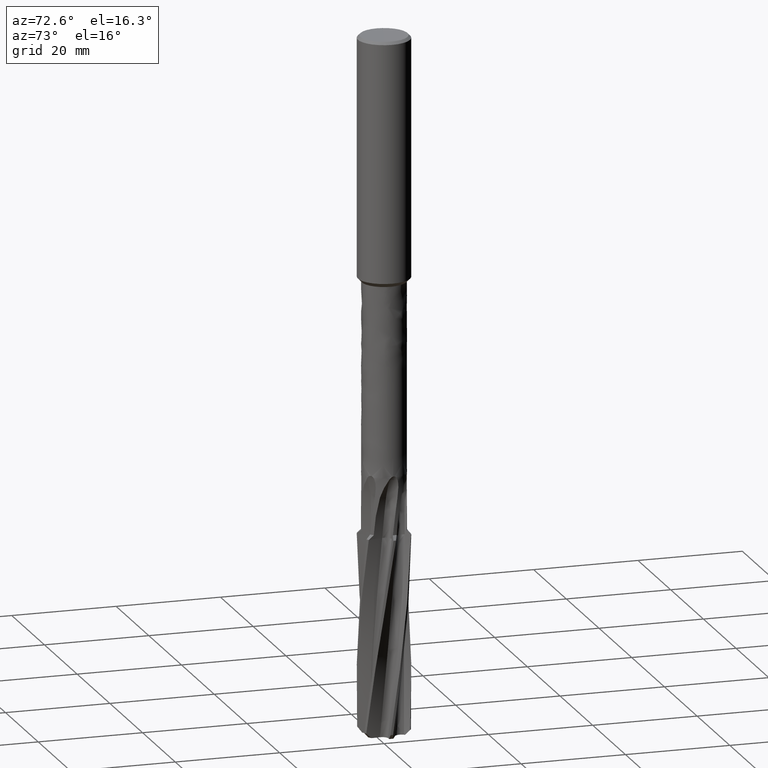
[diagram: clean part render]
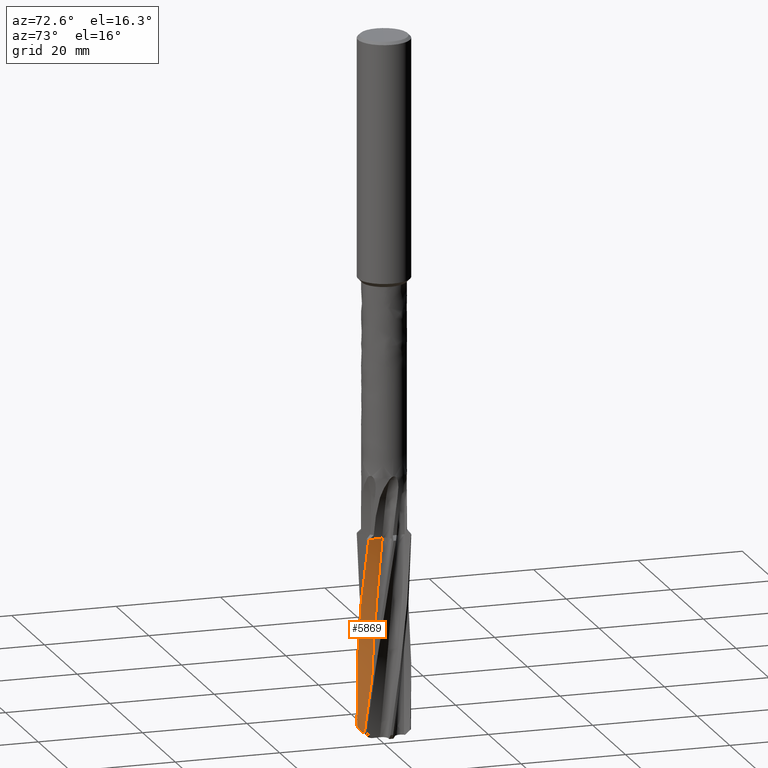
[diagram: same view with one face highlighted and labeled with its STEP entity id]
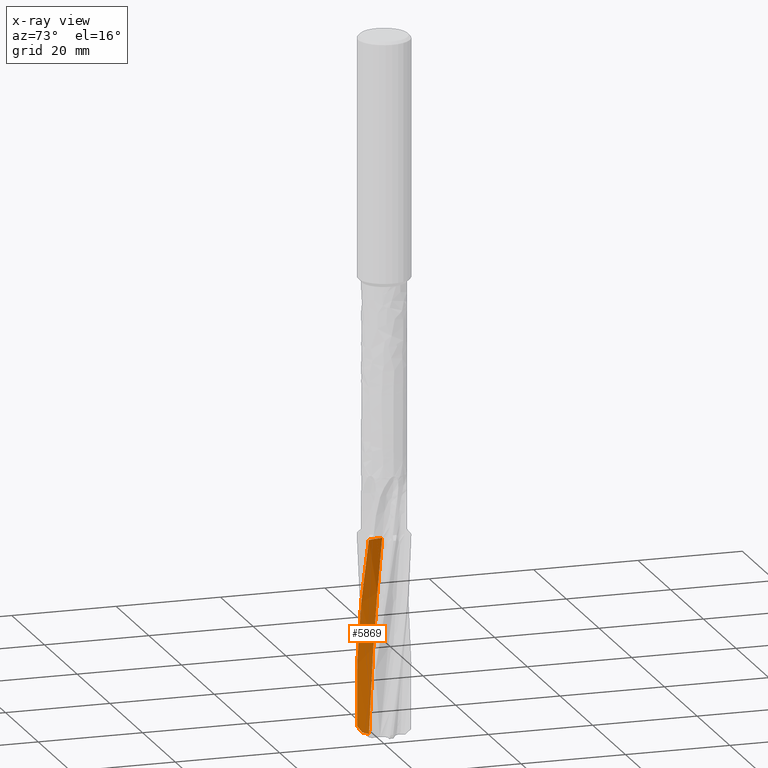
[diagram: x-ray of the same camera — body ghosted, the highlighted face saturated]
A machine part, auxiliary view. The second image highlights one B-rep face of the part: STEP entity #5869.
The next image is the same camera in x-ray: the body ghosted, the highlighted face saturated — about 0% of this face is hidden behind the body in this view.
In plain terms, the highlighted face is a freeform B-spline surface patch.
Its self-contained STEP definition (entity closure, byte-faithful):
#3456 = VERTEX_POINT('', #3457);
#3457 = CARTESIAN_POINT('', (3.13089593181059, -3.89839590911081, -95.));
#3464 = EDGE_CURVE('', #3456, #3465, #3467, .T.);
#3465 = VERTEX_POINT('', #3466);
#3466 = CARTESIAN_POINT('', (2.58059466023778, -1.17049713748387, -95.));
#3467 = LINE('', #3468, #3469);
#3468 = CARTESIAN_POINT('', (3.13089593181058, -3.89839590911081, -95.));
#3469 = VECTOR('', #3470, 2.78285163056503);
#3470 = DIRECTION('', (-0.550301271572802, 2.72789877162694, 0.));
#5111 = VERTEX_POINT('', #5112);
#5112 = CARTESIAN_POINT('', (-0.133809674868444, -2.82346604635968, -133.));
#5173 = EDGE_CURVE('', #5111, #5174, #5176, .T.);
#5174 = VERTEX_POINT('', #5175);
#5175 = CARTESIAN_POINT('', (-1.49466482442584, -3.71025296477531, -133.));
#5176 = LINE('', #5177, #5178);
#5177 = CARTESIAN_POINT('', (-0.133809674868444, -2.82346604635968, -133.));
#5178 = VECTOR('', #5179, 1.62428993001557);
#5179 = DIRECTION('', (-1.3608551495574, -0.886786918415631, 0.));
#5780 = EDGE_CURVE('', #5111, #3465, #5781, .T.);
#5781 = (
   BOUNDED_CURVE ()
   B_SPLINE_CURVE (3, (#5782, #5783, #5784, #5785, #5786, #5787, #5788, #5789, #5790, #5791, #5792, #5793, #5794, #5795), .UNSPECIFIED., .F., .U.)
   B_SPLINE_CURVE_WITH_KNOTS ((4, 1, 1, 1, 1, 1, 1, 1, 1, 1, 1, 4), (0.0500000000000116, 6.67333333333333, 10.01, 13.3466666666667, 16.6833333333333, 20.02, 23.3566666666667, 26.6933333333333, 30.03, 33.3666666666667, 36.7033333333333, 38.05), .UNSPECIFIED.)
   CURVE ()
   GEOMETRIC_REPRESENTATION_ITEM ()
   RATIONAL_B_SPLINE_CURVE ((1., 1., 1., 1., 1., 1., 1., 1., 1., 1., 1., 1., 1., 1.))
   REPRESENTATION_ITEM ('')
);
#5782 = CARTESIAN_POINT('', (-0.133809674868445, -2.82346604635968, -133.));
#5783 = CARTESIAN_POINT('', (0.0621218215007696, -2.82390519602974, -130.792222222222));
#5784 = CARTESIAN_POINT('', (0.355293690291508, -2.79605810999385, -127.472222222222));
#5785 = CARTESIAN_POINT('', (0.734070708758235, -2.70383760770485, -123.04));
#5786 = CARTESIAN_POINT('', (1.0104928206603, -2.60742814132762, -119.703333333333));
#5787 = CARTESIAN_POINT('', (1.27587969072799, -2.48496843520401, -116.366666666667));
#5788 = CARTESIAN_POINT('', (1.52804707450328, -2.33756945089298, -113.03));
#5789 = CARTESIAN_POINT('', (1.76476265952271, -2.1664614627376, -109.693333333333));
#5790 = CARTESIAN_POINT('', (1.98440931996192, -1.97317096067186, -106.356666666667));
#5791 = CARTESIAN_POINT('', (2.18354517086383, -1.75884311766201, -103.02));
#5792 = CARTESIAN_POINT('', (2.36604479269036, -1.5267495625062, -99.6833333333334));
#5793 = CARTESIAN_POINT('', (2.4805977989763, -1.32337429016507, -97.01));
#5794 = CARTESIAN_POINT('', (2.55998532406516, -1.20526964017141, -95.4488888888889));
#5795 = CARTESIAN_POINT('', (2.58059466023778, -1.17049713748387, -95.));
#5869 = ADVANCED_FACE('', (#5870), #5966, .T.);
#5870 = FACE_OUTER_BOUND('', #5871, .T.);
#5871 = EDGE_LOOP('', (#5872, #5873, #5945, #5964, #5965));
#5872 = ORIENTED_EDGE('', *, *, #3464, .F.);
#5873 = ORIENTED_EDGE('', *, *, #5874, .F.);
#5874 = EDGE_CURVE('', #5875, #3456, #5877, .T.);
#5875 = VERTEX_POINT('', #5876);
#5876 = CARTESIAN_POINT('', (-2.33685055169553, -4.42030875607578, -132.));
#5877 = B_SPLINE_CURVE_WITH_KNOTS('', 3, (#5878, #5879, #5880, #5881, #5882, #5883, #5884, #5885, #5886, #5887, #5888, #5889, #5890, #5891, #5892, #5893, #5894, #5895, #5896, #5897, #5898, #5899, #5900, #5901, #5902, #5903, #5904, #5905, #5906, #5907, #5908, #5909, #5910, #5911, #5912, #5913, #5914, #5915, #5916, #5917, #5918, #5919, #5920, #5921, #5922, #5923, #5924, #5925, #5926, #5927, #5928, #5929, #5930, #5931, #5932, #5933, #5934, #5935, #5936, #5937, #5938, #5939, #5940, #5941, #5942, #5943, #5944), .UNSPECIFIED., .F., .U., (4, 3, 3, 3, 3, 3, 3, 3, 3, 3, 3, 3, 3, 3, 3, 3, 3, 3, 3, 3, 3, 3, 4), (0., 3.366481885766, 6.73285627927183, 10.099118070063, 13.4652620562222, 15.7094586633426, 15.9065080086164, 19.2741510464826, 22.6416766650246, 24.8864903723262, 25.8841121435152, 28.1288774772012, 29.1265006618943, 30.1241203706545, 31.6205326181598, 32.6181125454917, 33.6156980482454, 34.6133249322299, 35.6109797705748, 36.0543636697215, 36.4977440701688, 37.1627929046463, 37.4540383965961), .UNSPECIFIED.);
#5878 = CARTESIAN_POINT('', (-2.33685055169553, -4.42030875607578, -132.));
#5879 = CARTESIAN_POINT('', (-2.18647855122457, -4.49980476227153, -130.890805191669));
#5880 = CARTESIAN_POINT('', (-2.0317465860947, -4.57177981300427, -129.781627926526));
#5881 = CARTESIAN_POINT('', (-1.87340993524996, -4.63576694997804, -128.672538377547));
#5882 = CARTESIAN_POINT('', (-1.71507834011769, -4.69975204383316, -127.563484241959));
#5883 = CARTESIAN_POINT('', (-1.55313700127577, -4.75575051575174, -126.454449612536));
#5884 = CARTESIAN_POINT('', (-1.38842298312793, -4.80336149169746, -125.345501214678));
#5885 = CARTESIAN_POINT('', (-1.22371447454125, -4.85097087509152, -124.236589910317));
#5886 = CARTESIAN_POINT('', (-1.05621883535675, -4.8901975563148, -123.127697067867));
#5887 = CARTESIAN_POINT('', (-0.886813196496951, -4.92072782772211, -122.018891647977));
#5888 = CARTESIAN_POINT('', (-0.717413486103264, -4.95125703070171, -120.910125031491));
#5889 = CARTESIAN_POINT('', (-0.546092809280999, -4.973092136918, -119.801376337077));
#5890 = CARTESIAN_POINT('', (-0.373767875994681, -4.98601018599785, -118.692715457761));
#5891 = CARTESIAN_POINT('', (-0.258879436226936, -4.99462260484708, -117.953575066251));
#5892 = CARTESIAN_POINT('', (-0.143539063759709, -4.99927402672674, -117.214447918988));
#5893 = CARTESIAN_POINT('', (-0.0280235325630629, -4.99992146754577, -116.475355374995));
#5894 = CARTESIAN_POINT('', (-0.0178808116806619, -4.99997831541244, -116.410460124094));
#5895 = CARTESIAN_POINT('', (-0.00773673287404498, -5.00000430689544, -116.345565051041));
#5896 = CARTESIAN_POINT('', (0.00240851156096305, -4.99999941990717, -116.28067016989));
#5897 = CARTESIAN_POINT('', (0.175794328913127, -4.99991589954836, -115.171593687567));
#5898 = CARTESIAN_POINT('', (0.349529746221143, -4.99080361466428, -114.062535332326));
#5899 = CARTESIAN_POINT('', (0.522621675332964, -4.97261164625526, -112.953562145708));
#5900 = CARTESIAN_POINT('', (0.695707569263171, -4.95442031214405, -111.844627625563));
#5901 = CARTESIAN_POINT('', (0.868168640364381, -4.92715301178733, -110.735706569158));
#5902 = CARTESIAN_POINT('', (1.03914783366477, -4.89082526571854, -109.626891060786));
#5903 = CARTESIAN_POINT('', (1.1531236367502, -4.86660896224587, -108.887747685497));
#5904 = CARTESIAN_POINT('', (1.26643608719733, -4.83836478317231, -108.148622678715));
#5905 = CARTESIAN_POINT('', (1.3786748398044, -4.80616850371377, -107.409518014761));
#5906 = CARTESIAN_POINT('', (1.42855506942333, -4.79186009618995, -107.081051157333));
#5907 = CARTESIAN_POINT('', (1.47822406544491, -4.77677169412535, -106.752585205701));
#5908 = CARTESIAN_POINT('', (1.52764780391807, -4.76091295732071, -106.424120536667));
#5909 = CARTESIAN_POINT('', (1.63885697956935, -4.72522894997124, -105.685036723862));
#5910 = CARTESIAN_POINT('', (1.74882203627501, -4.68565555843267, -104.945941905207));
#5911 = CARTESIAN_POINT('', (1.85767505700758, -4.64209471925895, -104.206929601758));
#5912 = CARTESIAN_POINT('', (1.90605173833684, -4.62273532233124, -103.878496247666));
#5913 = CARTESIAN_POINT('', (1.95420757542505, -4.60258727285942, -103.550075802894));
#5914 = CARTESIAN_POINT('', (2.00214520068042, -4.58163885475408, -103.22167558138));
#5915 = CARTESIAN_POINT('', (2.05008265891084, -4.56069050963752, -102.893276504084));
#5916 = CARTESIAN_POINT('', (2.09782169052413, -4.53893133447138, -102.564899153237));
#5917 = CARTESIAN_POINT('', (2.14522045031924, -4.51641774192025, -102.236525459476));
#5918 = CARTESIAN_POINT('', (2.21631776731403, -4.48264774386086, -101.7439706184));
#5919 = CARTESIAN_POINT('', (2.28663248473813, -4.44718405035633, -101.251415388691));
#5920 = CARTESIAN_POINT('', (2.3557155973809, -4.41028389383907, -100.758798484071));
#5921 = CARTESIAN_POINT('', (2.40176970219388, -4.38568448580937, -100.430396510128));
#5922 = CARTESIAN_POINT('', (2.44727909345766, -4.36044752577761, -100.101964799577));
#5923 = CARTESIAN_POINT('', (2.49213879634088, -4.33465618241777, -99.7734889532808));
#5924 = CARTESIAN_POINT('', (2.53699874994262, -4.30886469491147, -99.4450112711504));
#5925 = CARTESIAN_POINT('', (2.58117756980737, -4.28254384147104, -99.1164812463514));
#5926 = CARTESIAN_POINT('', (2.62506795198999, -4.25546921589559, -98.787975838596));
#5927 = CARTESIAN_POINT('', (2.66896015480657, -4.22839346722711, -98.4594568039805));
#5928 = CARTESIAN_POINT('', (2.71256857694554, -4.20056045776324, -98.1309608046645));
#5929 = CARTESIAN_POINT('', (2.75621401754067, -4.17172437842103, -97.8025587130418));
#5930 = CARTESIAN_POINT('', (2.79986068111844, -4.14288749106715, -97.474147419311));
#5931 = CARTESIAN_POINT('', (2.84354504177162, -4.11304634370625, -97.1458268476894));
#5932 = CARTESIAN_POINT('', (2.88749865051652, -4.08195437790102, -96.8176623384805));
#5933 = CARTESIAN_POINT('', (2.90703278364337, -4.06813629523253, -96.6718174489834));
#5934 = CARTESIAN_POINT('', (2.92661897974896, -4.0540711660517, -96.5260026739988));
#5935 = CARTESIAN_POINT('', (2.94627174714118, -4.03973796080855, -96.3802234521619));
#5936 = CARTESIAN_POINT('', (2.96592435945532, -4.02540486866733, -96.2344453806549));
#5937 = CARTESIAN_POINT('', (2.98565156665902, -4.01079681298687, -96.0887042898416));
#5938 = CARTESIAN_POINT('', (3.00533122934455, -3.99599602126007, -95.9429766113647));
#5939 = CARTESIAN_POINT('', (3.03484975726936, -3.97379556026243, -95.7243922476346));
#5940 = CARTESIAN_POINT('', (3.06425678278115, -3.95116264032841, -95.5058363426819));
#5941 = CARTESIAN_POINT('', (3.09318677122583, -3.92838333138627, -95.287232850305));
#5942 = CARTESIAN_POINT('', (3.10585610959599, -3.91840756615642, -95.191499607303));
#5943 = CARTESIAN_POINT('', (3.11843480724221, -3.90840373928674, -95.0957572219313));
#5944 = CARTESIAN_POINT('', (3.13089593181059, -3.89839590911081, -95.));
#5945 = ORIENTED_EDGE('', *, *, #5946, .F.);
#5946 = EDGE_CURVE('', #5174, #5875, #5947, .T.);
#5947 = B_SPLINE_CURVE_WITH_KNOTS('', 3, (#5948, #5949, #5950, #5951, #5952, #5953, #5954, #5955, #5956, #5957, #5958, #5959, #5960, #5961, #5962, #5963), .UNSPECIFIED., .F., .U., (4, 3, 3, 3, 3, 4), (0., 0.296130375142799, 0.592155994982276, 0.888098983471301, 1.18397638560556, 1.48804456943354), .UNSPECIFIED.);
#5948 = CARTESIAN_POINT('', (-1.49466482442584, -3.71025296477531, -133.));
#5949 = CARTESIAN_POINT('', (-1.55344215439332, -3.75623288885011, -132.935387610701));
#5950 = CARTESIAN_POINT('', (-1.61157342323545, -3.80240366316762, -132.870319108371));
#5951 = CARTESIAN_POINT('', (-1.66910266959154, -3.84878636403124, -132.804876617119));
#5952 = CARTESIAN_POINT('', (-1.72661156513542, -3.89515265714238, -132.739457275969));
#5953 = CARTESIAN_POINT('', (-1.78352200498772, -3.94173328409886, -132.673660195936));
#5954 = CARTESIAN_POINT('', (-1.8398696242489, -3.9885446771025, -132.607550925113));
#5955 = CARTESIAN_POINT('', (-1.89620151487188, -4.03534300337015, -132.541460107754));
#5956 = CARTESIAN_POINT('', (-1.95197352645992, -4.0823741737264, -132.475053856722));
#5957 = CARTESIAN_POINT('', (-2.00721449923356, -4.12965088033219, -132.408385203508));
#5958 = CARTESIAN_POINT('', (-2.0624432296018, -4.17691710955899, -132.341731325282));
#5959 = CARTESIAN_POINT('', (-2.11714342513178, -4.22443072993819, -132.274812167794));
#5960 = CARTESIAN_POINT('', (-2.17133843198057, -4.27220141146984, -132.207671183406));
#5961 = CARTESIAN_POINT('', (-2.22703372059061, -4.3212945300006, -132.138671533429));
#5962 = CARTESIAN_POINT('', (-2.28219755214288, -4.37066099439003, -132.069434865571));
#5963 = CARTESIAN_POINT('', (-2.33685055169553, -4.42030875607578, -132.));
#5964 = ORIENTED_EDGE('', *, *, #5173, .F.);
#5965 = ORIENTED_EDGE('', *, *, #5780, .T.);
#5966 = B_SPLINE_SURFACE_WITH_KNOTS('', 3, 1, ((#5967, #5968), (#5969, #5970), (#5971, #5972), (#5973, #5974), (#5975, #5976), (#5977, #5978), (#5979, #5980), (#5981, #5982), (#5983, #5984), (#5985, #5986), (#5987, #5988), (#5989, #5990), (#5991, #5992), (#5993, #5994)), .UNSPECIFIED., .F., .F., .U., (4, 1, 1, 1, 1, 1, 1, 1, 1, 1, 1, 4), (2, 2), (0.0499999999999547, 6.67333333333333, 10.01, 13.3466666666667, 16.6833333333333, 20.02, 23.3566666666667, 26.6933333333333, 30.03, 33.3666666666667, 36.7033333333333, 38.0500000000123), (0., 0.338781113701063), .UNSPECIFIED.);
#5967 = CARTESIAN_POINT('', (-0.13380967486845, -2.82346604635968, -133.));
#5968 = CARTESIAN_POINT('', (-2.53672195606104, -4.38929851409505, -133.));
#5969 = CARTESIAN_POINT('', (0.0621218215007667, -2.82390519602974, -130.792222222222));
#5970 = CARTESIAN_POINT('', (-2.22485123581838, -4.5512342202569, -130.792222222222));
#5971 = CARTESIAN_POINT('', (0.355293690291506, -2.79605810999385, -127.472222222222));
#5972 = CARTESIAN_POINT('', (-1.73474310537486, -4.74811462341719, -127.472222222222));
#5973 = CARTESIAN_POINT('', (0.734070708758235, -2.70383760770485, -123.04));
#5974 = CARTESIAN_POINT('', (-1.05524234715876, -4.91285713576283, -123.04));
#5975 = CARTESIAN_POINT('', (1.0104928206603, -2.60742814132762, -119.703333333333));
#5976 = CARTESIAN_POINT('', (-0.535404926329102, -4.98669433911492, -119.703333333333));
#5977 = CARTESIAN_POINT('', (1.27587969072799, -2.48496843520401, -116.366666666667));
#5978 = CARTESIAN_POINT('', (-0.0117157678470556, -5.00993733793977, -116.366666666667));
#5979 = CARTESIAN_POINT('', (1.52804707450328, -2.33756945089298, -113.03));
#5980 = CARTESIAN_POINT('', (0.511430132415928, -4.98255907826035, -113.03));
#5981 = CARTESIAN_POINT('', (1.76476265952271, -2.1664614627376, -109.693333333333));
#5982 = CARTESIAN_POINT('', (1.02946299363692, -4.90468308420894, -109.693333333333));
#5983 = CARTESIAN_POINT('', (1.98440931996192, -1.97317096067186, -106.356666666667));
#5984 = CARTESIAN_POINT('', (1.53854962119035, -4.77741117174151, -106.356666666667));
#5985 = CARTESIAN_POINT('', (2.18354517086383, -1.75884311766201, -103.02));
#5986 = CARTESIAN_POINT('', (2.03226271784166, -4.59973586829008, -103.02));
#5987 = CARTESIAN_POINT('', (2.36604479269036, -1.5267495625062, -99.6833333333333));
#5988 = CARTESIAN_POINT('', (2.51408444167077, -4.38005923781454, -99.6833333333333));
#5989 = CARTESIAN_POINT('', (2.48059779897647, -1.32337429016476, -97.0099999999959));
#5990 = CARTESIAN_POINT('', (2.86399509919139, -4.15023282050535, -97.0099999999959));
#5991 = CARTESIAN_POINT('', (2.55998532406557, -1.20526964017079, -95.4488888888807));
#5992 = CARTESIAN_POINT('', (3.08769594815202, -4.02735341662163, -95.4488888888807));
#5993 = CARTESIAN_POINT('', (2.58059466023835, -1.17049713748292, -94.9999999999877));
#5994 = CARTESIAN_POINT('', (3.14915350834243, -3.98890055295174, -94.9999999999877));